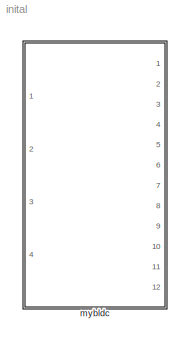
MODEL inital
KIND model
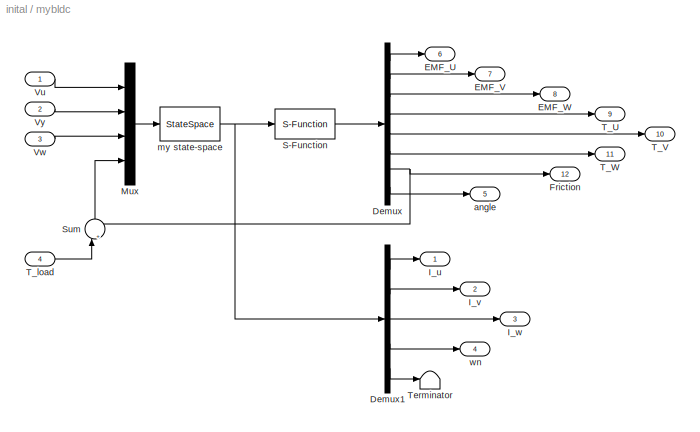
BLOCK [SubSystem] mybldc
  Ports = [4, 12]
  RequestExecContextInheritance = off
  SID = 1
BLOCK [Demux] mybldc/Demux
  Outputs = 8
  Ports = [1, 8]
  SID = 6
BLOCK [Demux] mybldc/Demux1
  Outputs = 5
  Ports = [1, 5]
  SID = 7
BLOCK [Outport] mybldc/EMF_U
  IconDisplay = Port number
  Port = 6
  SID = 18
BLOCK [Outport] mybldc/EMF_V
  IconDisplay = Port number
  Port = 7
  SID = 19
BLOCK [Outport] mybldc/EMF_W
  IconDisplay = Port number
  Port = 8
  SID = 20
BLOCK [Outport] mybldc/Friction
  IconDisplay = Port number
  Port = 12
  SID = 24
BLOCK [Outport] mybldc/I_u
  IconDisplay = Port number
  SID = 13
BLOCK [Outport] mybldc/I_v
  IconDisplay = Port number
  Port = 2
  SID = 14
BLOCK [Outport] mybldc/I_w
  IconDisplay = Port number
  Port = 3
  SID = 15
BLOCK [Mux] mybldc/Mux
  DisplayOption = bar
  Ports = [4, 1]
  SID = 8
BLOCK [S-Function] mybldc/S-Function
  EnableBusSupport = off
  FunctionName = MYBLDC2
  Parameters = N,R,L,M,BM,Rl,Rr,DF,J,P,F0,Fs
  Ports = [1, 1]
  SFcnIsStateOwnerBlock = off
  SFunctionDeploymentMode = off
  SID = 9
BLOCK [Sum] mybldc/Sum
  IconShape = round
  Inputs = |++
  Ports = [2, 1]
  SID = 10
BLOCK [Outport] mybldc/T_U
  IconDisplay = Port number
  Port = 9
  SID = 21
BLOCK [Outport] mybldc/T_V
  IconDisplay = Port number
  Port = 10
  SID = 22
BLOCK [Outport] mybldc/T_W
  IconDisplay = Port number
  Port = 11
  SID = 23
BLOCK [Inport] mybldc/T_load
  IconDisplay = Port number
  Port = 4
  SID = 5
BLOCK [Terminator] mybldc/Terminator
  SID = 11
BLOCK [Inport] mybldc/Vu
  IconDisplay = Port number
  SID = 2
BLOCK [Inport] mybldc/Vw
  IconDisplay = Port number
  Port = 3
  SID = 4
BLOCK [Inport] mybldc/Vy
  IconDisplay = Port number
  Port = 2
  SID = 3
BLOCK [Outport] mybldc/angle
  IconDisplay = Port number
  Port = 5
  SID = 17
BLOCK [StateSpace] mybldc/my state-space
  A = [ -1.658768e+002  0 0 0 0; 0  -1.658768e+002 0 1.161137e+001 0; 0  0 -1.658768e+002 -1.161137e+001 0; 0  -245 245 -10 0; 0  0 0 2 0]
  B = [236.96 0 0 0; 0 236.96 0 0; 0 0 236.96 0; 0 0 0 -5000; 0 0 0 0]
  C = [1 0 0 0 0;0 1 0 0 0;0 0 1 0 0; 0 0 0 1 0;0 0 0 0 1]
  D = [0 0 0 0 ; 0 0 0 0; 0 0 0 0; 0 0 0 0; 0 0 0 0]
  InitialCondition = [0 0 0 0 0]
  Ports = [1, 1]
  SID = 12
BLOCK [Outport] mybldc/wn
  IconDisplay = Port number
  Port = 4
  SID = 16
LINE mybldc/Demux1:1 -> mybldc/I_u:1
LINE mybldc/Demux1:2 -> mybldc/I_v:1
LINE mybldc/Demux1:3 -> mybldc/I_w:1
LINE mybldc/Demux1:4 -> mybldc/wn:1
LINE mybldc/Demux1:5 -> mybldc/Terminator:1
LINE mybldc/Demux:1 -> mybldc/EMF_U:1
LINE mybldc/Demux:2 -> mybldc/EMF_V:1
LINE mybldc/Demux:3 -> mybldc/EMF_W:1
LINE mybldc/Demux:4 -> mybldc/T_U:1
LINE mybldc/Demux:5 -> mybldc/T_V:1
LINE mybldc/Demux:6 -> mybldc/T_W:1
NET mybldc/Demux:7 -> mybldc/Friction:1, mybldc/Sum:2
LINE mybldc/Demux:8 -> mybldc/angle:1
LINE mybldc/Mux:1 -> mybldc/my state-space:1
LINE mybldc/S-Function:1 -> mybldc/Demux:1
LINE mybldc/Sum:1 -> mybldc/Mux:4
LINE mybldc/T_load:1 -> mybldc/Sum:1
LINE mybldc/Vu:1 -> mybldc/Mux:1
LINE mybldc/Vw:1 -> mybldc/Mux:3
LINE mybldc/Vy:1 -> mybldc/Mux:2
NET mybldc/my state-space:1 -> mybldc/Demux1:1, mybldc/S-Function:1
note: NET lines group one-source signal fan-out (src -> all destinations, sorted); 1:1 wires keep LINE
